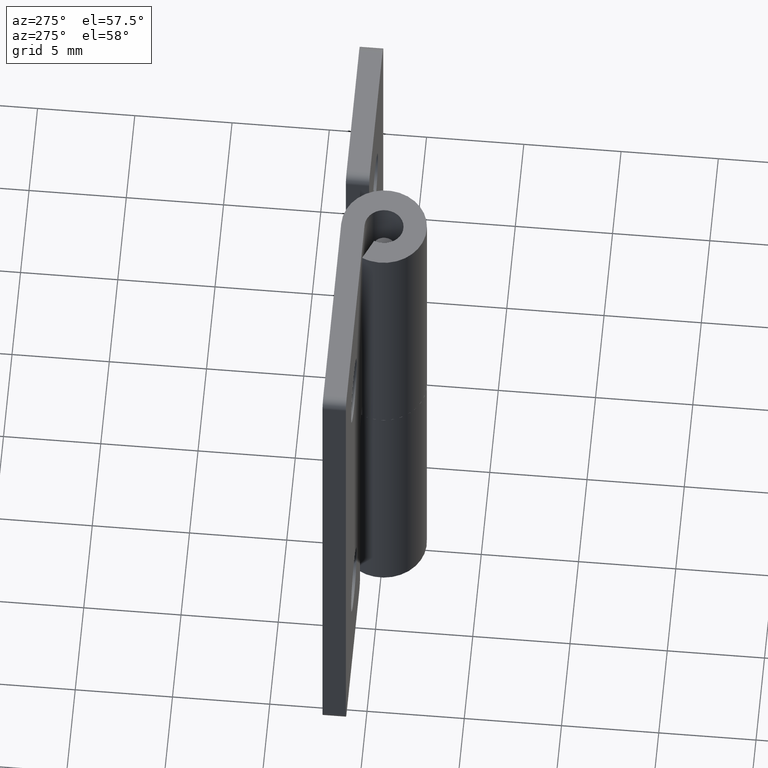
[diagram: clean part render]
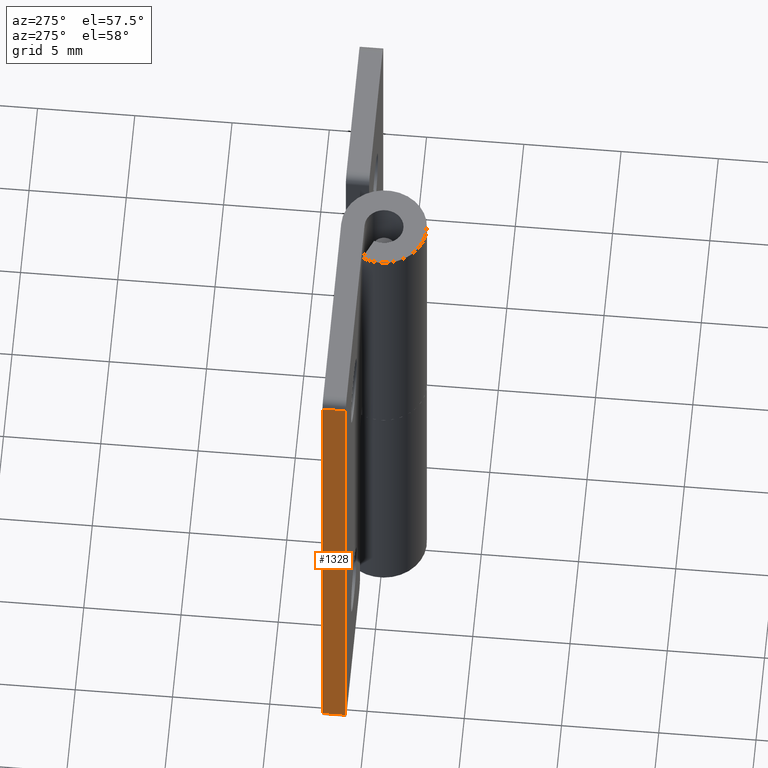
[diagram: same view with one face highlighted and labeled with its STEP entity id]
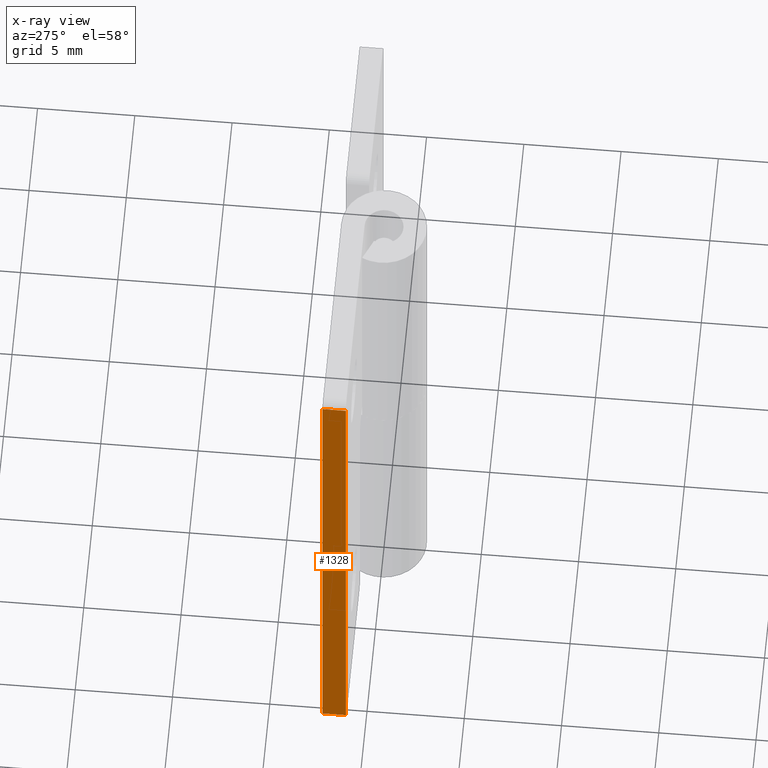
[diagram: x-ray of the same camera — body ghosted, the highlighted face saturated]
A machine part, auxiliary view. The second image highlights one B-rep face of the part: STEP entity #1328.
The next image is the same camera in x-ray: the body ghosted, the highlighted face saturated — about 0% of this face is hidden behind the body in this view.
In plain terms, the highlighted face is a freeform B-spline surface patch.
Its self-contained STEP definition (entity closure, byte-faithful):
#996=CARTESIAN_POINT('',(-11.0,1.0,29.500000000000000));
#997=VERTEX_POINT('',#996);
#1018=CARTESIAN_POINT('',(-11.0,2.200000999999950,29.500000000000000));
#1019=VERTEX_POINT('',#1018);
#1033=CARTESIAN_POINT('',(-11.0,2.200000999999950,29.500000000000000));
#1034=CARTESIAN_POINT('',(-11.0,1.0,29.500000000000000));
#1035=QUASI_UNIFORM_CURVE('',1,(#1033,#1034),.UNSPECIFIED.,.F.,.U.);
#1036=EDGE_CURVE('',#1019,#997,#1035,.T.);
#1055=CARTESIAN_POINT('',(-11.0,1.0,0.500000000000014));
#1056=VERTEX_POINT('',#1055);
#1072=CARTESIAN_POINT('',(-11.0,2.200000999999950,0.500000000000014));
#1073=VERTEX_POINT('',#1072);
#1074=CARTESIAN_POINT('',(-11.0,2.200000999999950,0.500000000000014));
#1075=CARTESIAN_POINT('',(-11.0,1.0,0.500000000000014));
#1076=QUASI_UNIFORM_CURVE('',1,(#1074,#1075),.UNSPECIFIED.,.F.,.U.);
#1077=EDGE_CURVE('',#1073,#1056,#1076,.T.);
#1309=CARTESIAN_POINT('',(-11.0,0.940059952375837,-0.948549943792358));
#1310=CARTESIAN_POINT('',(-11.0,0.940059952375837,30.948550721632980));
#1311=CARTESIAN_POINT('',(-11.0,2.259941079810648,-0.948549943792358));
#1312=CARTESIAN_POINT('',(-11.0,2.259941079810648,30.948550721632980));
#1313=B_SPLINE_SURFACE_WITH_KNOTS('',1,1,((#1309,#1311),(#1310,#1312)),.UNSPECIFIED.,.F.,.F.,.U.,(2,2),(2,2),(0.0,31.897100665425342),(0.041708334948495,0.958291687403247),.UNSPECIFIED.);
#1314=ORIENTED_EDGE('',*,*,#1036,.F.);
#1315=CARTESIAN_POINT('',(-11.0,2.200000999999950,0.500000000000014));
#1316=CARTESIAN_POINT('',(-11.0,2.200000999999950,29.500000000000000));
#1317=QUASI_UNIFORM_CURVE('',1,(#1315,#1316),.UNSPECIFIED.,.F.,.U.);
#1318=EDGE_CURVE('',#1073,#1019,#1317,.T.);
#1319=ORIENTED_EDGE('',*,*,#1318,.F.);
#1320=ORIENTED_EDGE('',*,*,#1077,.T.);
#1321=CARTESIAN_POINT('',(-11.0,1.0,0.500000000000014));
#1322=CARTESIAN_POINT('',(-11.0,1.0,29.500000000000000));
#1323=QUASI_UNIFORM_CURVE('',1,(#1321,#1322),.UNSPECIFIED.,.F.,.U.);
#1324=EDGE_CURVE('',#1056,#997,#1323,.T.);
#1325=ORIENTED_EDGE('',*,*,#1324,.T.);
#1326=EDGE_LOOP('',(#1314,#1319,#1320,#1325));
#1327=FACE_OUTER_BOUND('',#1326,.T.);
#1328=ADVANCED_FACE('',(#1327),#1313,.T.);